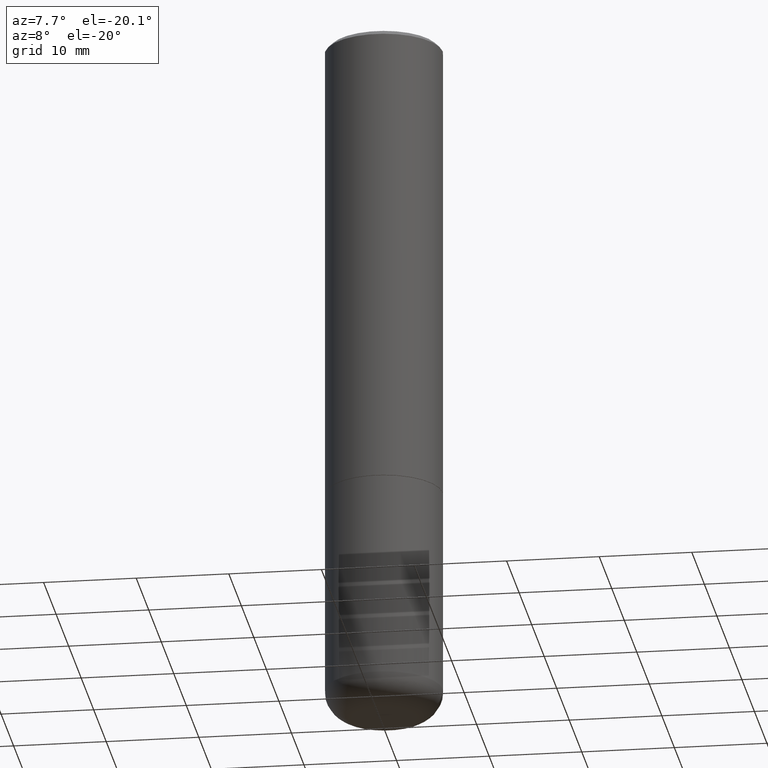
[diagram: clean part render]
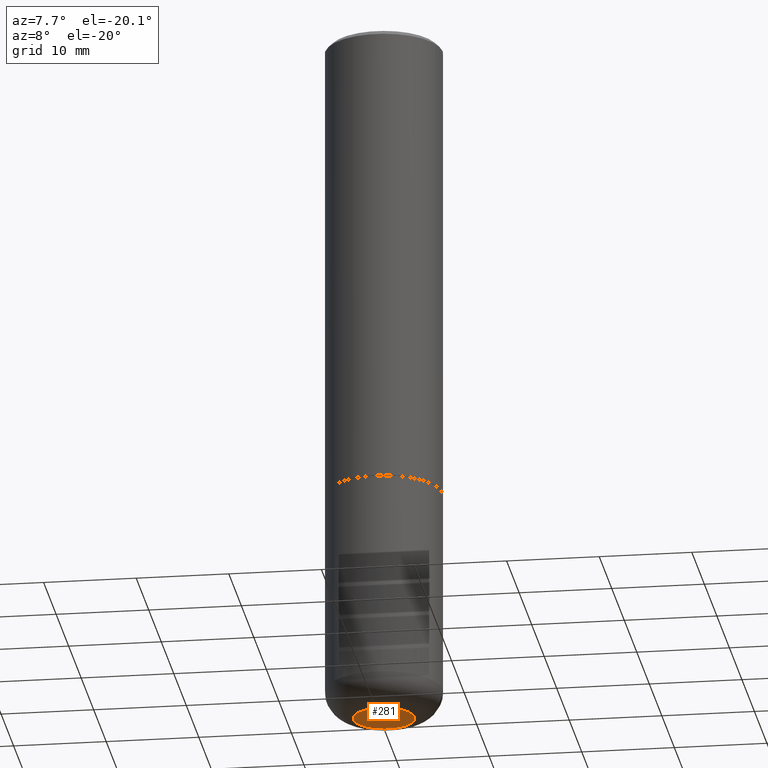
[diagram: same view with one face highlighted and labeled with its STEP entity id]
A machine part, auxiliary view. The second image highlights one B-rep face of the part: STEP entity #281.
In plain terms, the highlighted planar face has unit normal (0, -0, -1).
Its self-contained STEP definition (entity closure, byte-faithful):
#26 = CARTESIAN_POINT ( 'NONE',  ( 7.336406418555409790E-29, -1.047444401652943635E-14, -3.000000000000000444 ) ) ;
#36 = DIRECTION ( 'NONE',  ( 2.438088387897960049E-29, -3.491481338843145188E-15, -1.000000000000000000 ) ) ;
#39 = EDGE_LOOP ( 'NONE', ( #129, #353 ) ) ;
#44 = CIRCLE ( 'NONE', #343, 0.1300000000000000044 ) ;
#59 = EDGE_CURVE ( 'NONE', #410, #286, #284, .T. ) ;
#66 = DIRECTION ( 'NONE',  ( -2.445468806185136597E-29, 3.491481338843145583E-15, 1.000000000000000000 ) ) ;
#73 = AXIS2_PLACEMENT_3D ( 'NONE', #350, #36, #252 ) ;
#129 = ORIENTED_EDGE ( 'NONE', *, *, #248, .F. ) ;
#198 = CARTESIAN_POINT ( 'NONE',  ( -0.1300000000000000044, -8.914923938254659640E-15, -3.000000000000000444 ) ) ;
#248 = EDGE_CURVE ( 'NONE', #286, #410, #44, .T. ) ;
#250 = DIRECTION ( 'NONE',  ( 1.000000000000000000, -6.982962677686273810E-15, 0.000000000000000000 ) ) ;
#252 = DIRECTION ( 'NONE',  ( -1.000000000000000000, 6.982962677686265922E-15, -4.876176775795935793E-29 ) ) ;
#256 = AXIS2_PLACEMENT_3D ( 'NONE', #26, #374, #409 ) ;
#281 = ADVANCED_FACE ( 'NONE', ( #414 ), #346, .T. ) ;
#283 = CARTESIAN_POINT ( 'NONE',  ( 7.336406418555409790E-29, -1.047444401652943635E-14, -3.000000000000000444 ) ) ;
#284 = CIRCLE ( 'NONE', #256, 0.1300000000000000044 ) ;
#286 = VERTEX_POINT ( 'NONE', #318 ) ;
#318 = CARTESIAN_POINT ( 'NONE',  ( 0.1300000000000000044, -1.138222916462865292E-14, -3.000000000000000444 ) ) ;
#343 = AXIS2_PLACEMENT_3D ( 'NONE', #283, #66, #250 ) ;
#346 = PLANE ( 'NONE',  #73 ) ;
#350 = CARTESIAN_POINT ( 'NONE',  ( 7.336406418555409790E-29, -1.047444401652943635E-14, -3.000000000000000444 ) ) ;
#353 = ORIENTED_EDGE ( 'NONE', *, *, #59, .F. ) ;
#374 = DIRECTION ( 'NONE',  ( -2.445468806185136597E-29, 3.491481338843145583E-15, 1.000000000000000000 ) ) ;
#409 = DIRECTION ( 'NONE',  ( 1.000000000000000000, -6.982962677686273810E-15, 0.000000000000000000 ) ) ;
#410 = VERTEX_POINT ( 'NONE', #198 ) ;
#414 = FACE_OUTER_BOUND ( 'NONE', #39, .T. ) ;